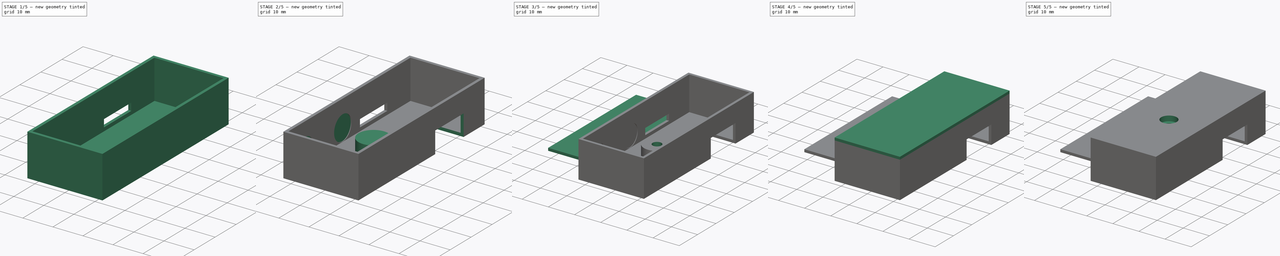
[diagram: build sequence overview — one tinted view per stage of 5, left to right]
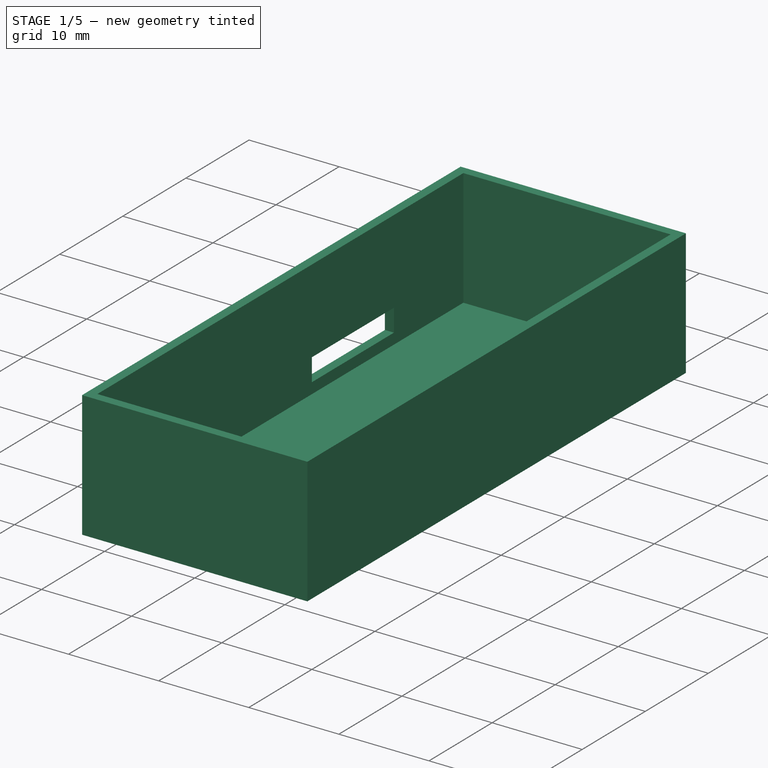
[diagram: stage 1 of 5 — iso view after this stage's code; geometry added in this stage tinted green]
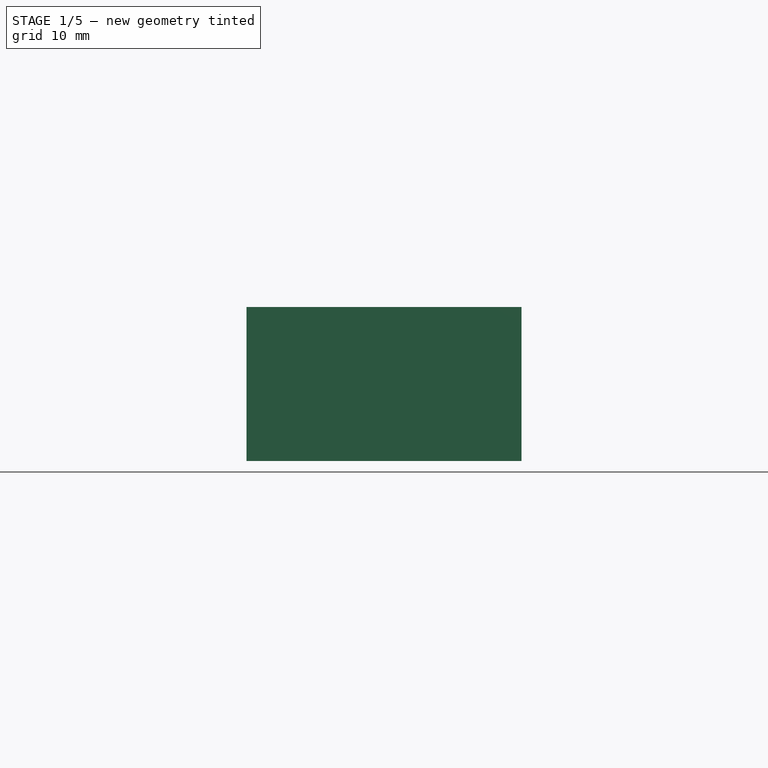
[diagram: stage 1 of 5 — front view after this stage's code; geometry added in this stage tinted green]
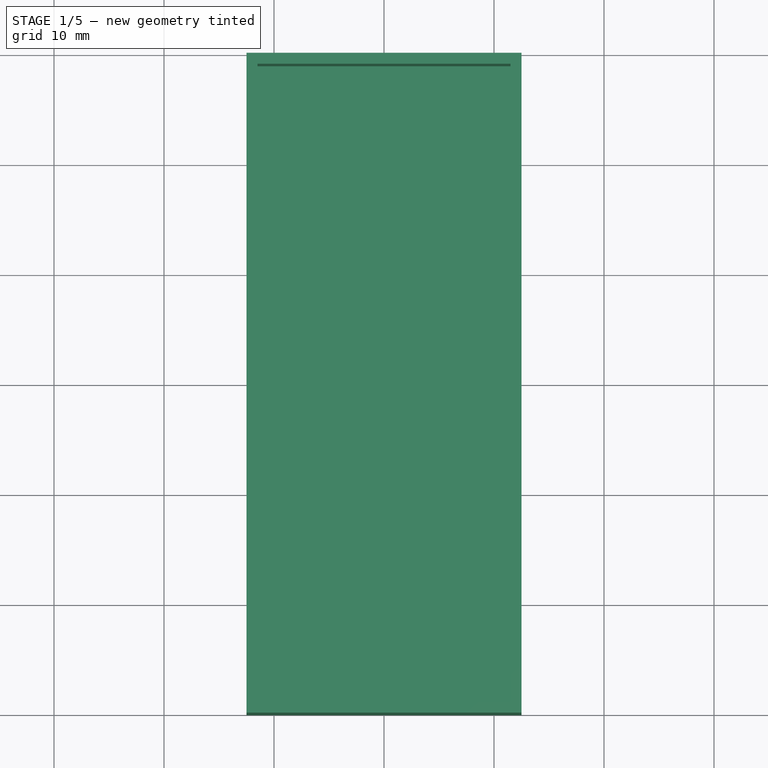
[diagram: stage 1 of 5 — top view after this stage's code; geometry added in this stage tinted green]
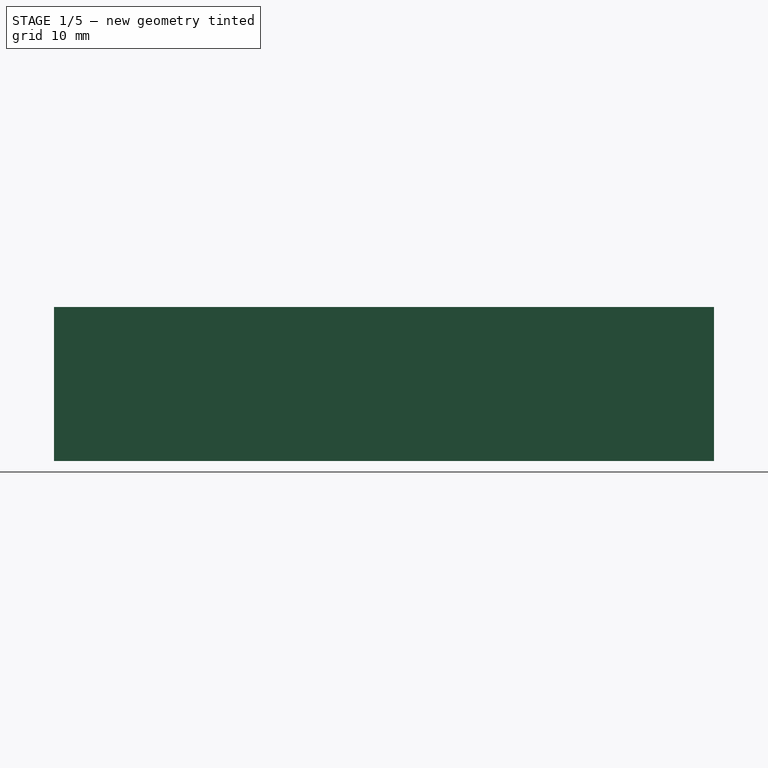
[diagram: stage 1 of 5 — right view after this stage's code; geometry added in this stage tinted green]
FCSTD DOCUMENT  (FreeCAD 0.18R16110 (Git))
Label: box
License: All rights reserved
LicenseURL: http://en.wikipedia.org/wiki/All_rights_reserved
objects: Sketcher::SketchObject×14, PartDesign::Pocket×8, PartDesign::Pad×6, PartDesign::Body×2, Spreadsheet::Sheet×1, PartDesign::Fillet×1
note: 45 computed .brp shape members not serialized (recipe doc carries the construction recipe); baked Part::Feature solids carry a one-line shape summary decoded from their .brp

FEATURE [Sketcher::SketchObject] Sketch
  MapMode = 5
  Support = -> [XY_Plane]
  sketch-geometry (4):
    g0: LineSegment StartX=-12.5 StartY=-30 StartZ=0 EndX=12.5 EndY=-30 EndZ=0
    g1: LineSegment StartX=12.5 StartY=-30 StartZ=0 EndX=12.5 EndY=30 EndZ=0
    g2: LineSegment StartX=12.5 StartY=30 StartZ=0 EndX=-12.5 EndY=30 EndZ=0
    g3: LineSegment StartX=-12.5 StartY=30 StartZ=0 EndX=-12.5 EndY=-30 EndZ=0
  constraints (11):
    c: Coincident(g0,g1)
    c: Coincident(g1,g2)
    c: Coincident(g2,g3)
    c: Coincident(g3,g0)
    c: Horizontal(g0)
    c: Horizontal(g2)
    c: Vertical(g1)
    c: Vertical(g3)
    c: Symmetric(g1,g0,g-1)
    c: Distance(g1) = 60
    c: Distance(g2) = 25
FEATURE [PartDesign::Pad] Pad  label="Base"
  Length = 14
  Length2 = 100
  Profile = -> Sketch
  Type = 0
  expr: Length = 12 + Spreadsheet.top_bottom * 2
FEATURE [Sketcher::SketchObject] Sketch001
  ExternalGeometry = -> [Pad]
  MapMode = 5
  Placement = pos=(0,0,14) rot=(0,0,1;0rad)
  Support = -> [Pad]
  expr: Constraints[11] = Spreadsheet.wall
  expr: Constraints[10] = Spreadsheet.wall
  expr: Constraints[9] = Spreadsheet.wall
  expr: Constraints[8] = Spreadsheet.wall
  sketch-geometry (4):
    g0: LineSegment StartX=-11.5 StartY=29 StartZ=0 EndX=11.5 EndY=29 EndZ=0
    g1: LineSegment StartX=11.5 StartY=29 StartZ=0 EndX=11.5 EndY=-29 EndZ=0
    g2: LineSegment StartX=11.5 StartY=-29 StartZ=0 EndX=-11.5 EndY=-29 EndZ=0
    g3: LineSegment StartX=-11.5 StartY=-29 StartZ=0 EndX=-11.5 EndY=29 EndZ=0
  constraints (12):
    c: Coincident(g0,g1)
    c: Coincident(g1,g2)
    c: Coincident(g2,g3)
    c: Coincident(g3,g0)
    c: Horizontal(g0)
    c: Horizontal(g2)
    c: Vertical(g1)
    c: Vertical(g3)
    c: DistanceX(g-3,g0) = 1
    c: DistanceY(g0,g-3) = 1
    c: DistanceY(g-4,g1) = 1
    c: DistanceX(g1,g-4) = 1
FEATURE [Spreadsheet::Sheet] Spreadsheet
  cells = A1=Wall thickness; B1(wall)=1; A2=Top/Bottom; B2(top_bottom)=1
FEATURE [PartDesign::Pocket] Pocket  label="Box"
  BaseFeature = -> Pad
  Length = 13
  Length2 = 100
  Profile = -> Sketch001
  Type = 0
  expr: Length = 12 + Spreadsheet.top_bottom
FEATURE [Sketcher::SketchObject] Sketch002
  ExternalGeometry = -> [Pocket]
  MapMode = 5
  Placement = pos=(-11.5,0,0) rot=(0.57735,0.57735,0.57735;2.0944rad)
  Support = -> [Pocket]
  expr: Constraints[10] = 12 - Spreadsheet.wall
  sketch-geometry (4):
    g0: LineSegment StartX=18 StartY=2.2 StartZ=0 EndX=5 EndY=2.2 EndZ=0
    g1: LineSegment StartX=5 StartY=2.2 StartZ=0 EndX=5 EndY=4.7 EndZ=0
    g2: LineSegment StartX=5 StartY=4.7 StartZ=0 EndX=18 EndY=4.7 EndZ=0
    g3: LineSegment StartX=18 StartY=4.7 StartZ=0 EndX=18 EndY=2.2 EndZ=0
  constraints (12):
    c: Coincident(g0,g1)
    c: Coincident(g1,g2)
    c: Coincident(g2,g3)
    c: Coincident(g3,g0)
    c: Horizontal(g0)
    c: Horizontal(g2)
    c: Vertical(g1)
    c: Vertical(g3)
    c: Distance(g1) = 2.5
    c: Distance(g2) = 13
    c: DistanceX(g2,g-4) = 11
    c: DistanceY(g-4,g0) = 1.2
FEATURE [PartDesign::Pocket] Pocket001  label="Pogos"
  BaseFeature = -> Pocket
  Length = 5
  Length2 = 100
  Profile = -> Sketch002
  Type = 0
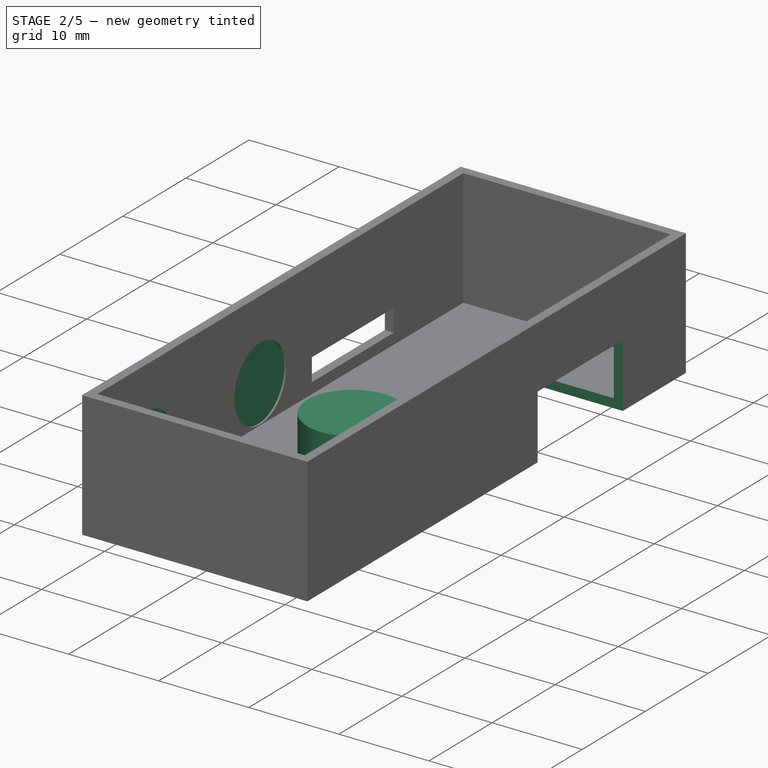
[diagram: stage 2 of 5 — iso view after this stage's code; geometry added in this stage tinted green]
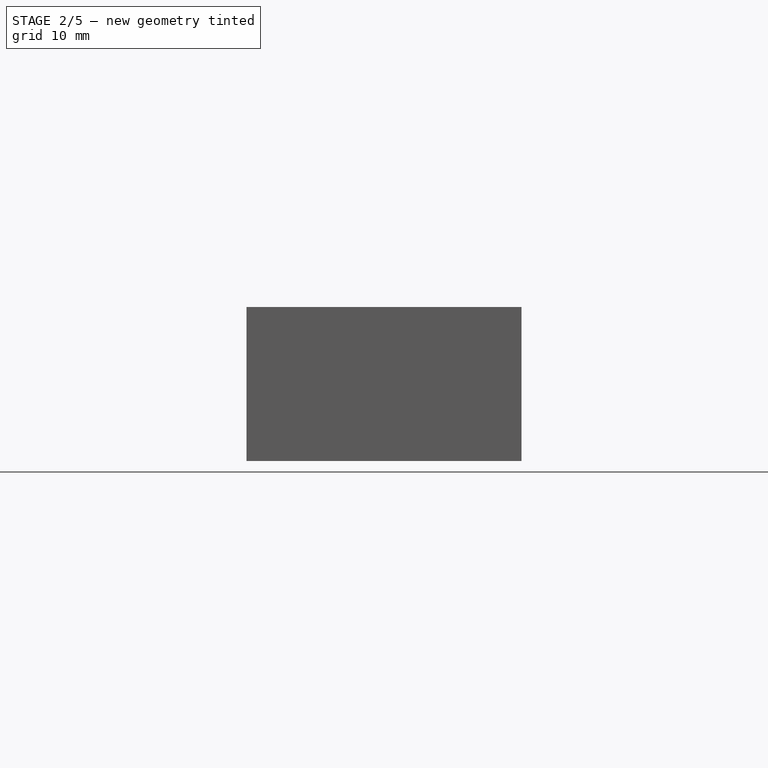
[diagram: stage 2 of 5 — front view after this stage's code; geometry added in this stage tinted green]
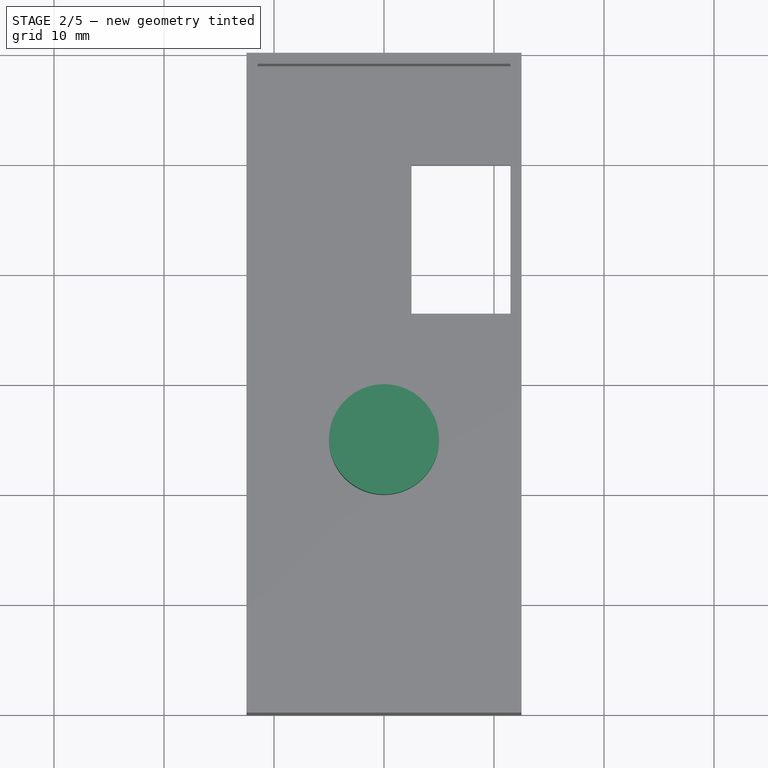
[diagram: stage 2 of 5 — top view after this stage's code; geometry added in this stage tinted green]
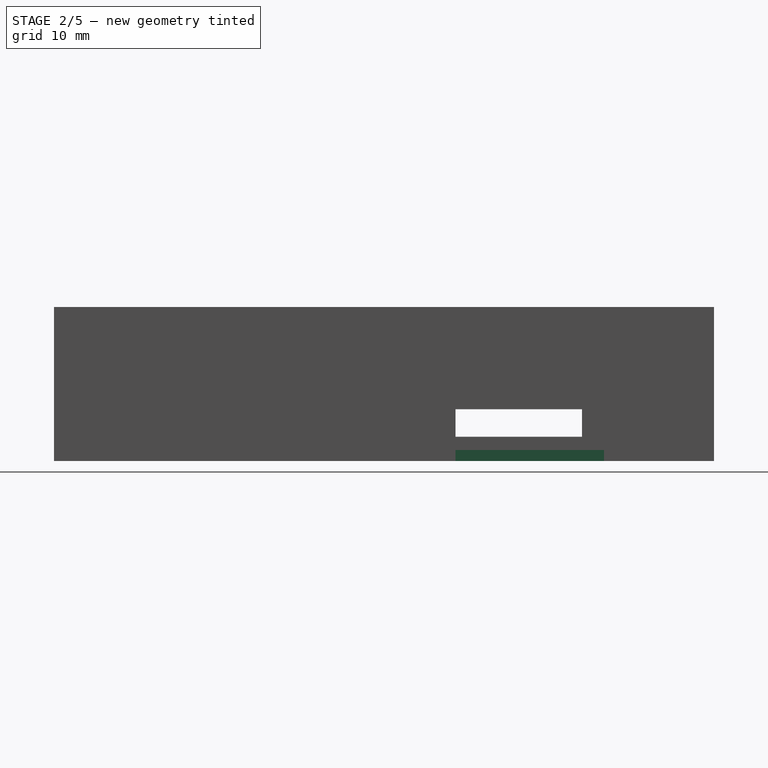
[diagram: stage 2 of 5 — right view after this stage's code; geometry added in this stage tinted green]
FEATURE [Sketcher::SketchObject] Sketch003
  ExternalGeometry = -> [Pocket001]
  MapMode = 5
  Placement = pos=(-11.5,0,0) rot=(0.57735,0.57735,0.57735;2.0944rad)
  Support = -> [Pocket001]
  sketch-geometry (2):
    g0: Circle CenterX=-3.2 CenterY=5.2 CenterZ=0 NormalX=0 NormalY=0 NormalZ=1 AngleXU=0 Radius=4.1
    g1: Circle CenterX=-21.2 CenterY=5.2 CenterZ=0 NormalX=0 NormalY=0 NormalZ=1 AngleXU=0 Radius=4.1
  constraints (6):
    c: Radius(g0) = 4.1
    c: DistanceX(g0,g-3) = 8.2
    c: DistanceY(g-3,g0) = 3
    c: Radius(g1) = 4.1
    c: DistanceX(g1,g0) = 18
    c: DistanceY(g1,g0) = 0
FEATURE [PartDesign::Pocket] Pocket002  label="Magnets"
  BaseFeature = -> Pocket001
  Length = 0.2
  Length2 = 100
  Profile = -> Sketch003
  Type = 0
  expr: Length = Spreadsheet.wall - 0.8
FEATURE [Sketcher::SketchObject] Sketch004
  ExternalGeometry = -> [Pocket002]
  MapMode = 5
  Placement = pos=(12.5,0,0) rot=(0.57735,0.57735,0.57735;2.0944rad)
  Support = -> [Pocket002]
  expr: Constraints[10] = 9 + Spreadsheet.wall
  sketch-geometry (4):
    g0: LineSegment StartX=20 StartY=7.1 StartZ=0 EndX=6.5 EndY=7.1 EndZ=0
    g1: LineSegment StartX=6.5 StartY=7.1 StartZ=0 EndX=6.5 EndY=0 EndZ=0
    g2: LineSegment StartX=6.5 StartY=0 StartZ=0 EndX=20 EndY=0 EndZ=0
    g3: LineSegment StartX=20 StartY=0 StartZ=0 EndX=20 EndY=7.1 EndZ=0
  constraints (12):
    c: Coincident(g0,g1)
    c: Coincident(g1,g2)
    c: Coincident(g2,g3)
    c: Coincident(g3,g0)
    c: Horizontal(g0)
    c: Horizontal(g2)
    c: Vertical(g1)
    c: Vertical(g3)
    c: Distance(g2) = 13.5
    c: Distance(g3) = 7.1
    c: DistanceX(g0,g-3) = 10
    c: PointOnObject(g1,g-3)
FEATURE [PartDesign::Pocket] Pocket003
  BaseFeature = -> Pocket002
  Length = 10
  Length2 = 100
  Profile = -> Sketch004
  Type = 0
FEATURE [Sketcher::SketchObject] Sketch005
  MapMode = 5
  Placement = pos=(0,0,1) rot=(0,0,1;0rad)
  Support = -> [Pocket003]
  sketch-geometry (1):
    g0: Circle CenterX=0 CenterY=-5 CenterZ=0 NormalX=0 NormalY=0 NormalZ=1 AngleXU=0 Radius=5
  constraints (3):
    c: PointOnObject(g0,g-2)
    c: Tangent(g0,g-1)
    c: Radius(g0) = 5
FEATURE [PartDesign::Pad] Pad001  label="Screw Post"
  BaseFeature = -> Pocket003
  Length = 5
  Length2 = 100
  Profile = -> Sketch005
  Type = 0
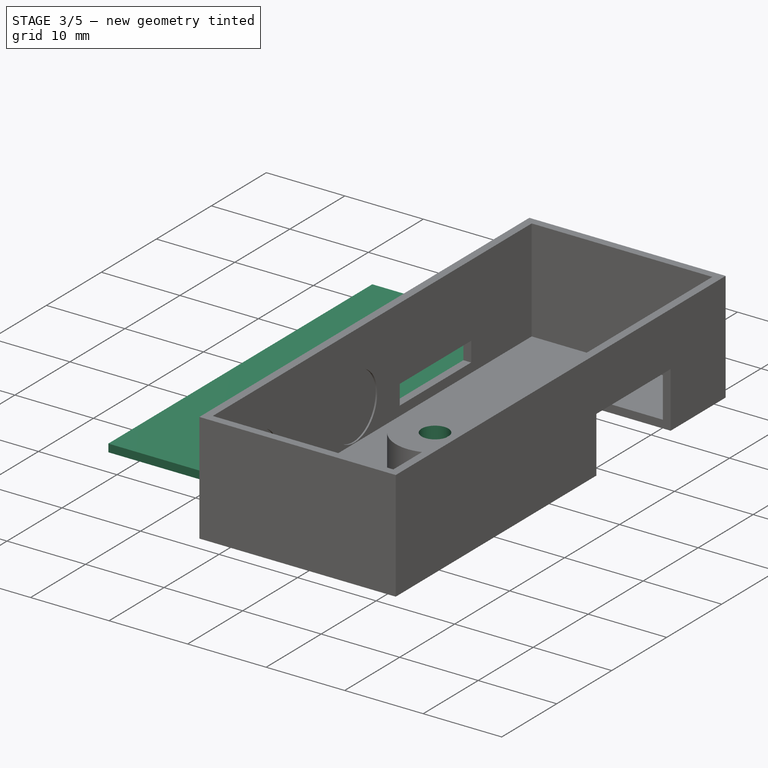
[diagram: stage 3 of 5 — iso view after this stage's code; geometry added in this stage tinted green]
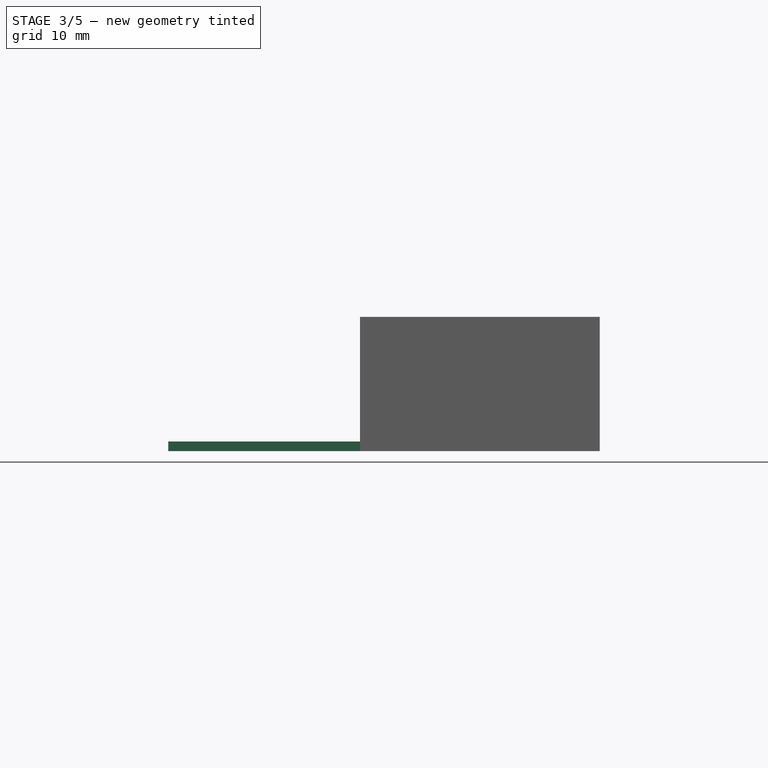
[diagram: stage 3 of 5 — front view after this stage's code; geometry added in this stage tinted green]
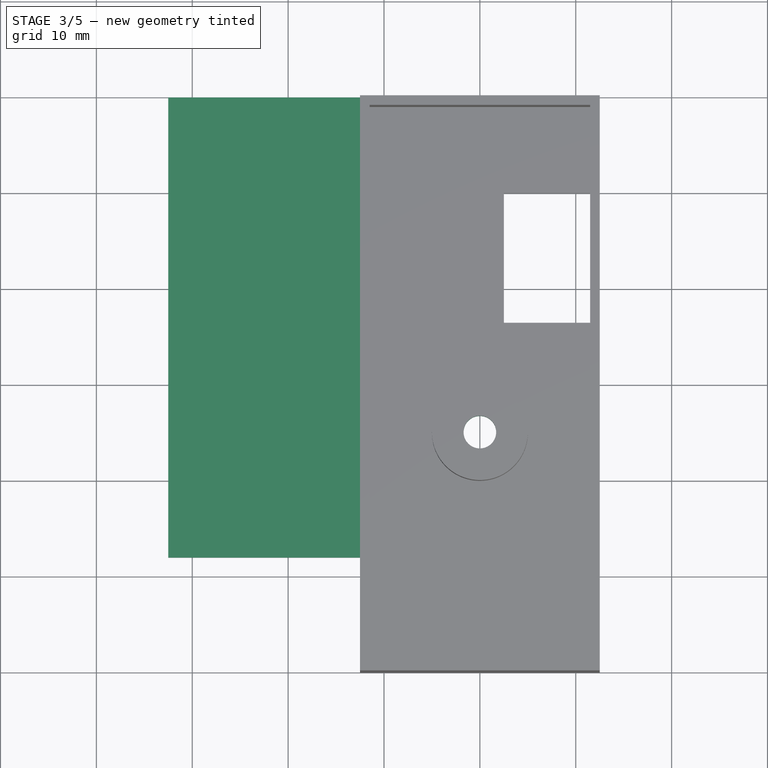
[diagram: stage 3 of 5 — top view after this stage's code; geometry added in this stage tinted green]
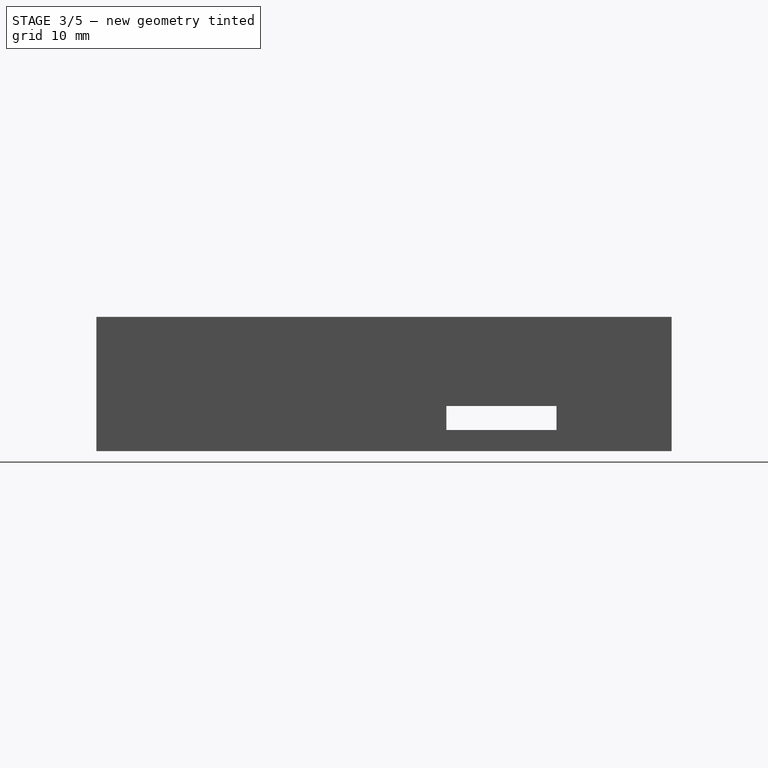
[diagram: stage 3 of 5 — right view after this stage's code; geometry added in this stage tinted green]
FEATURE [Sketcher::SketchObject] Sketch006
  ExternalGeometry = -> [Pad001]
  MapMode = 5
  Placement = pos=(0,0,6) rot=(0,0,1;0rad)
  Support = -> [Pad001]
  sketch-geometry (1):
    g0: Circle CenterX=0 CenterY=-5 CenterZ=0 NormalX=0 NormalY=0 NormalZ=1 AngleXU=0 Radius=1.7
  constraints (1):
    c: Radius(g0) = 1.7
FEATURE [PartDesign::Pocket] Pocket004  label="Screw Hole"
  BaseFeature = -> Pad001
  Length = 5
  Length2 = 100
  Profile = -> Sketch006
  Type = 1
FEATURE [Sketcher::SketchObject] Sketch007
  ExternalGeometry = -> [Pocket004]
  MapMode = 5
  Placement = pos=(0,0,0) rot=(1,0,0;3.14159rad)
  Support = -> [Pocket004]
  sketch-geometry (7):
    g0: LineSegment StartX=2.72798 StartY=6.575 StartZ=0 EndX=0 EndY=8.15 EndZ=0
    g1: LineSegment StartX=0 StartY=8.15 StartZ=0 EndX=-2.72798 EndY=6.575 EndZ=0
    g2: LineSegment StartX=-2.72798 StartY=6.575 StartZ=0 EndX=-2.72798 EndY=3.425 EndZ=0
    g3: LineSegment StartX=-2.72798 StartY=3.425 StartZ=0 EndX=-4e-16 EndY=1.85 EndZ=0
    g4: LineSegment StartX=-4e-16 StartY=1.85 StartZ=0 EndX=2.72798 EndY=3.425 EndZ=0
    g5: LineSegment StartX=2.72798 StartY=3.425 StartZ=0 EndX=2.72798 EndY=6.575 EndZ=0
    g6: Circle [constr] CenterX=0 CenterY=5 CenterZ=0 NormalX=0 NormalY=0 NormalZ=1 AngleXU=0 Radius=3.15
  constraints (16):
    c: Coincident(g0,g1)
    c: Coincident(g1,g2)
    c: Coincident(g2,g3)
    c: Coincident(g3,g4)
    c: Coincident(g4,g5)
    c: Coincident(g5,g0)
    c: Equal(g0, g1-g5) x5
    c: PointOnObject(g0,g6)
    c: PointOnObject(g1,g6)
    c: PointOnObject(g2,g6)
    c: PointOnObject(g3,g6)
    c: PointOnObject(g4,g6)
    c: PointOnObject(g5,g6)
    c: Coincident(g6,g-3)
    c: PointOnObject(g0,g-2)
    c: Radius(g6) = 3.15
FEATURE [PartDesign::Pocket] Pocket005  label="Hex Nut"
  BaseFeature = -> Pocket004
  Length = 4
  Length2 = 100
  Profile = -> Sketch007
  Type = 0
FEATURE [PartDesign::Body] Body001  label="Top"
  Group = -> [Sketch008,Pad002,Sketch009,Pad003,Sketch010,Pad004,Sketch011,Pocket006,Sketch012,Pocket007]
  Origin = -> Origin001
  Tip = -> Pocket007
FEATURE [Sketcher::SketchObject] Sketch013
  ExternalGeometry = -> [Pocket005]
  MapMode = 5
  Placement = pos=(0,30,0) rot=(0,0.707107,0.707107;3.14159rad)
  Support = -> [Pocket005]
  expr: Constraints[9] = Spreadsheet.top_bottom
  sketch-geometry (4):
    g0: LineSegment StartX=12.5 StartY=0 StartZ=0 EndX=32.5 EndY=0 EndZ=0
    g1: LineSegment StartX=32.5 StartY=0 StartZ=0 EndX=32.5 EndY=1 EndZ=0
    g2: LineSegment StartX=32.5 StartY=1 StartZ=0 EndX=12.5 EndY=1 EndZ=0
    g3: LineSegment StartX=12.5 StartY=1 StartZ=0 EndX=12.5 EndY=0 EndZ=0
  constraints (11):
    c: Coincident(g0,g1)
    c: Coincident(g1,g2)
    c: Coincident(g2,g3)
    c: Coincident(g3,g0)
    c: Horizontal(g0)
    c: Horizontal(g2)
    c: Vertical(g1)
    c: Vertical(g3)
    c: Coincident(g0,g-3)
    c: Distance(g1) = 1
    c: Distance(g2) = 20
FEATURE [PartDesign::Pad] Pad005  label="Backplate"
  BaseFeature = -> Pocket005
  Length = 48
  Length2 = 100
  Profile = -> Sketch013
  Reversed = true
  Type = 0
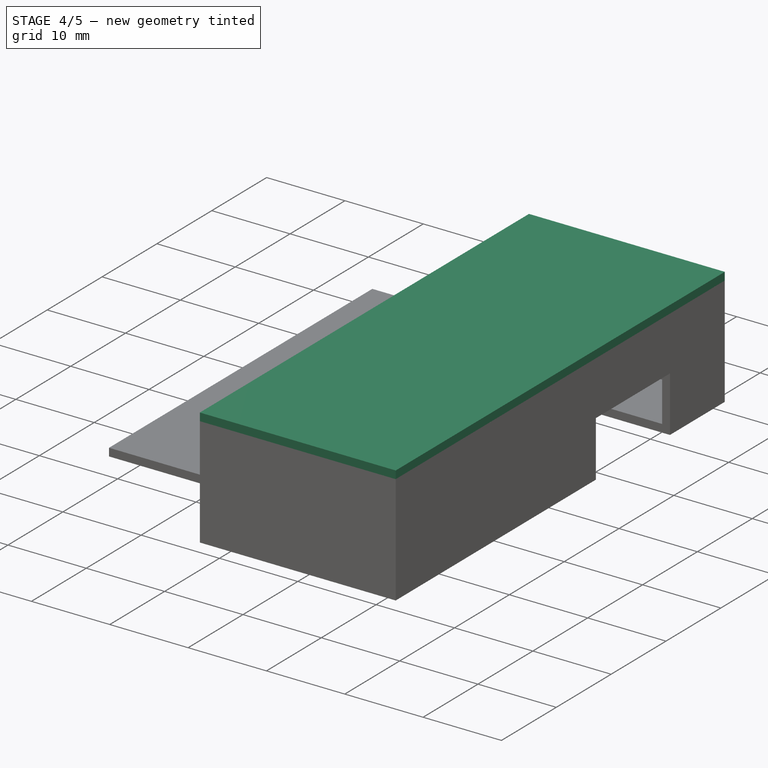
[diagram: stage 4 of 5 — iso view after this stage's code; geometry added in this stage tinted green]
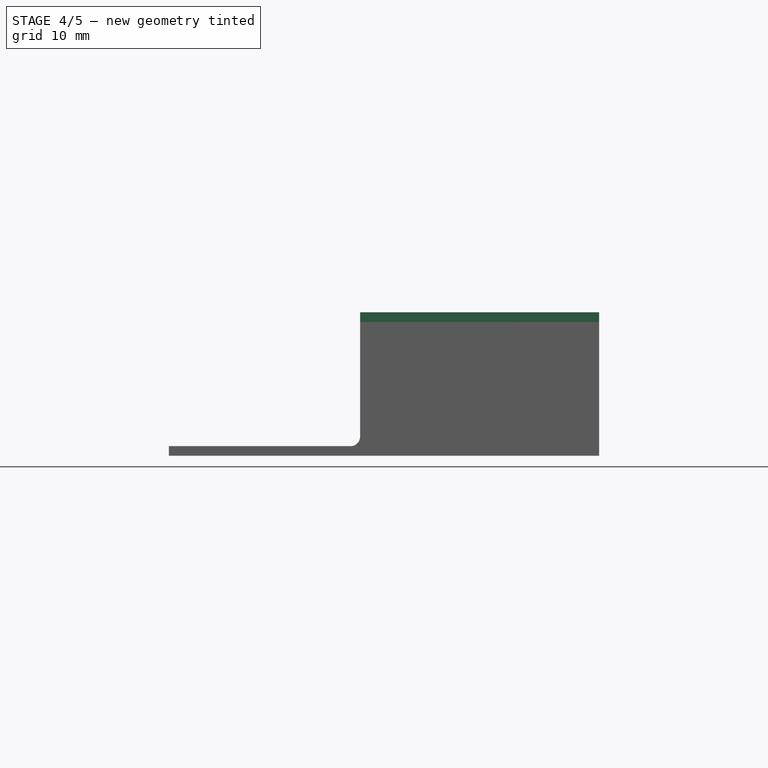
[diagram: stage 4 of 5 — front view after this stage's code; geometry added in this stage tinted green]
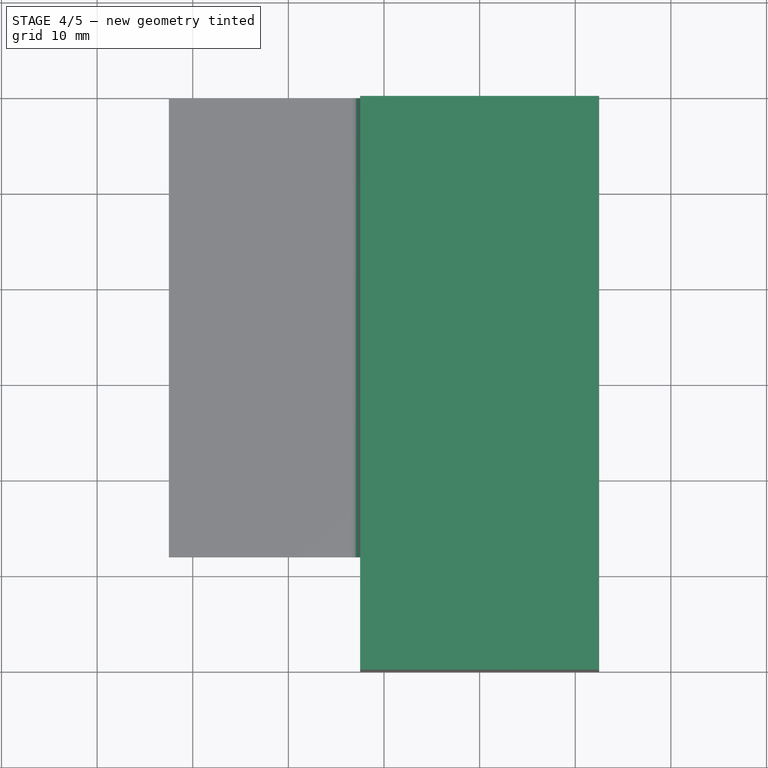
[diagram: stage 4 of 5 — top view after this stage's code; geometry added in this stage tinted green]
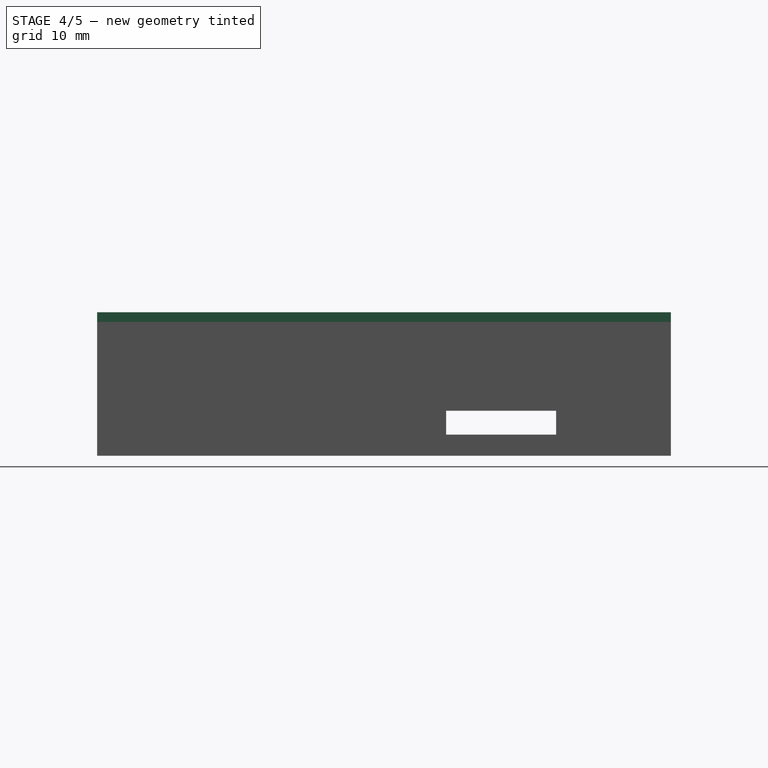
[diagram: stage 4 of 5 — right view after this stage's code; geometry added in this stage tinted green]
FEATURE [Sketcher::SketchObject] Sketch008
  AttachmentOffset = pos=(0,0,14) rot=(0,0,1;0rad)
  MapMode = 5
  Placement = pos=(0,0,14) rot=(0,0,1;0rad)
  Support = -> [XY_Plane001]
  expr: AttachmentOffset.Base.z = Spreadsheet.top_bottom * 2 + 12
  sketch-geometry (4):
    g0: LineSegment StartX=-12.5 StartY=30 StartZ=0 EndX=12.5 EndY=30 EndZ=0
    g1: LineSegment StartX=12.5 StartY=30 StartZ=0 EndX=12.5 EndY=-30 EndZ=0
    g2: LineSegment StartX=12.5 StartY=-30 StartZ=0 EndX=-12.5 EndY=-30 EndZ=0
    g3: LineSegment StartX=-12.5 StartY=-30 StartZ=0 EndX=-12.5 EndY=30 EndZ=0
  constraints (11):
    c: Coincident(g0,g1)
    c: Coincident(g1,g2)
    c: Coincident(g2,g3)
    c: Coincident(g3,g0)
    c: Horizontal(g0)
    c: Horizontal(g2)
    c: Vertical(g1)
    c: Vertical(g3)
    c: Symmetric(g1,g0,g-1)
    c: DistanceX(g0,g0) = 25
    c: Distance(g1) = 60
FEATURE [PartDesign::Pad] Pad002
  Length = 1
  Length2 = 100
  Profile = -> Sketch008
  Type = 0
  expr: Length = Spreadsheet.top_bottom
FEATURE [Sketcher::SketchObject] Sketch009
  ExternalGeometry = -> [Pad002]
  MapMode = 5
  Placement = pos=(0,0,14) rot=(1,0,0;3.14159rad)
  Support = -> [Pad002]
  expr: Constraints[10] = Spreadsheet.wall + 0.1
  expr: Constraints[9] = Spreadsheet.wall + 0.1
  expr: Constraints[8] = Spreadsheet.wall + 0.1
  sketch-geometry (8):
    g0: LineSegment StartX=-11.4 StartY=28.9 StartZ=0 EndX=11.4 EndY=28.9 EndZ=0
    g1: LineSegment StartX=11.4 StartY=28.9 StartZ=0 EndX=11.4 EndY=26.9 EndZ=0
    g2: LineSegment StartX=11.4 StartY=26.9 StartZ=0 EndX=-11.4 EndY=26.9 EndZ=0
    g3: LineSegment StartX=-11.4 StartY=26.9 StartZ=0 EndX=-11.4 EndY=28.9 EndZ=0
    g4: LineSegment StartX=9.4 StartY=24.9 StartZ=0 EndX=11.4 EndY=24.9 EndZ=0
    g5: LineSegment StartX=11.4 StartY=24.9 StartZ=0 EndX=11.4 EndY=-5 EndZ=0
    g6: LineSegment StartX=11.4 StartY=-5 StartZ=0 EndX=9.4 EndY=-5 EndZ=0
    g7: LineSegment StartX=9.4 StartY=-5 StartZ=0 EndX=9.4 EndY=24.9 EndZ=0
  constraints (24):
    c: Coincident(g0,g1)
    c: Coincident(g1,g2)
    c: Coincident(g2,g3)
    c: Coincident(g3,g0)
    c: Horizontal(g0)
    c: Horizontal(g2)
    c: Vertical(g1)
    c: Vertical(g3)
    c: DistanceY(g0,g-3) = 1.1
    c: DistanceX(g-3,g0) = 1.1
    c: DistanceX(g0,g-3) = 1.1
    c: DistanceY(g1,g1) = 2
    c: Coincident(g4,g5)
    c: Coincident(g5,g6)
    c: Coincident(g6,g7)
    c: Coincident(g7,g4)
    c: Horizontal(g4)
    c: Horizontal(g6)
    c: Vertical(g5)
    c: Vertical(g7)
    c: DistanceX(g4,g1) = 0
    c: Distance(g4) = 2
    c: DistanceY(g4,g1) = 2
    c: DistanceY(g5,g-1) = 5
FEATURE [PartDesign::Pad] Pad003
  BaseFeature = -> Pad002
  Length = 3
  Length2 = 100
  Profile = -> Sketch009
  Type = 0
FEATURE [PartDesign::Fillet] Fillet
  Base = -> Pad005 [Edge5]
  BaseFeature = -> Pad005
  Radius = 1
FEATURE [PartDesign::Body] Body  label="Bottom"
  Group = -> [Sketch,Pad,Sketch001,Pocket,Sketch002,Pocket001,Sketch003,Pocket002,Sketch004,Pocket003,Sketch005,Pad001,Sketch006,Pocket004,Sketch007,Pocket005,Sketch013,Pad005,Fillet]
  Origin = -> Origin
  Tip = -> Fillet
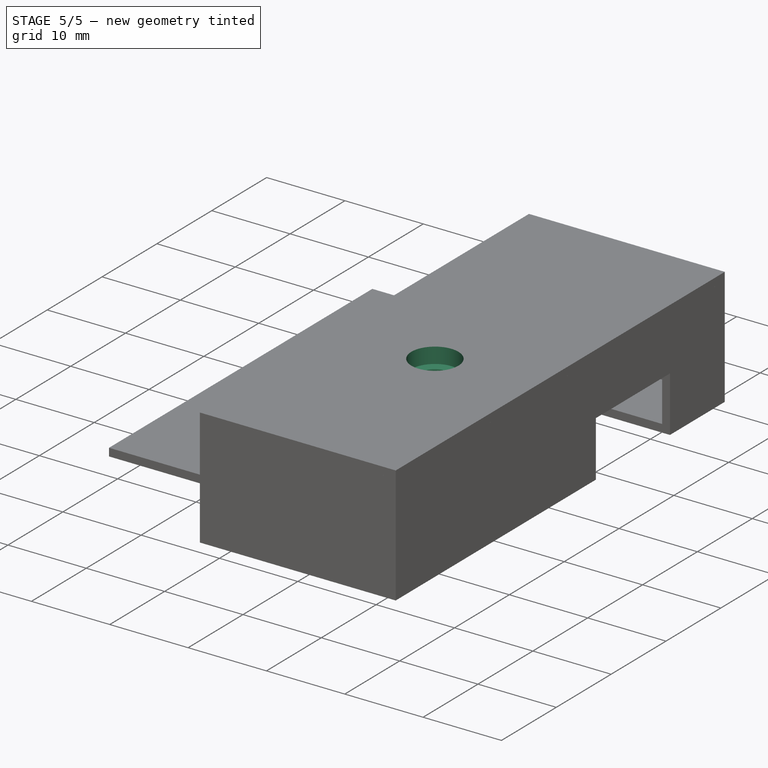
[diagram: stage 5 of 5 — iso view after this stage's code; geometry added in this stage tinted green]
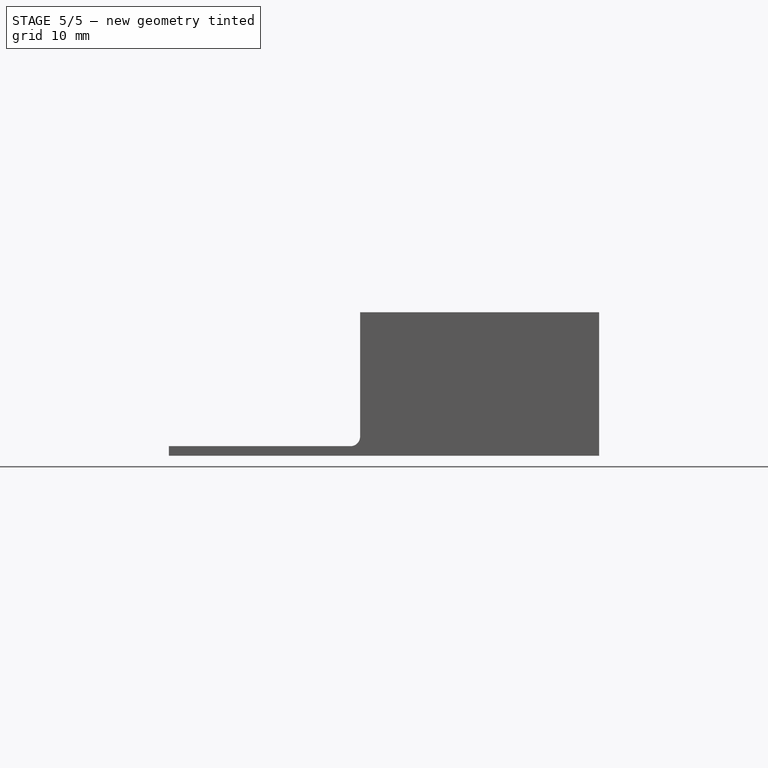
[diagram: stage 5 of 5 — front view after this stage's code; geometry added in this stage tinted green]
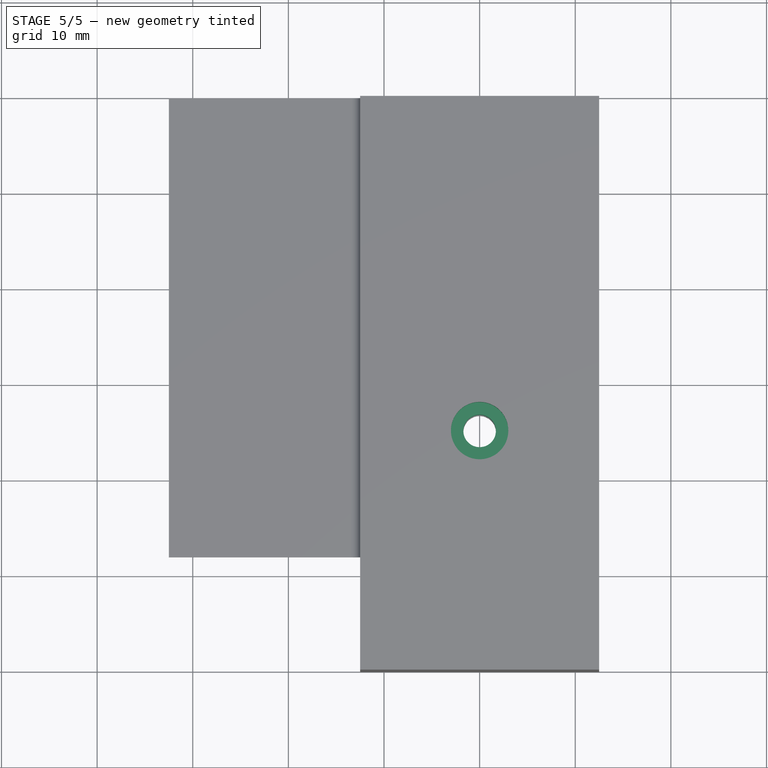
[diagram: stage 5 of 5 — top view after this stage's code; geometry added in this stage tinted green]
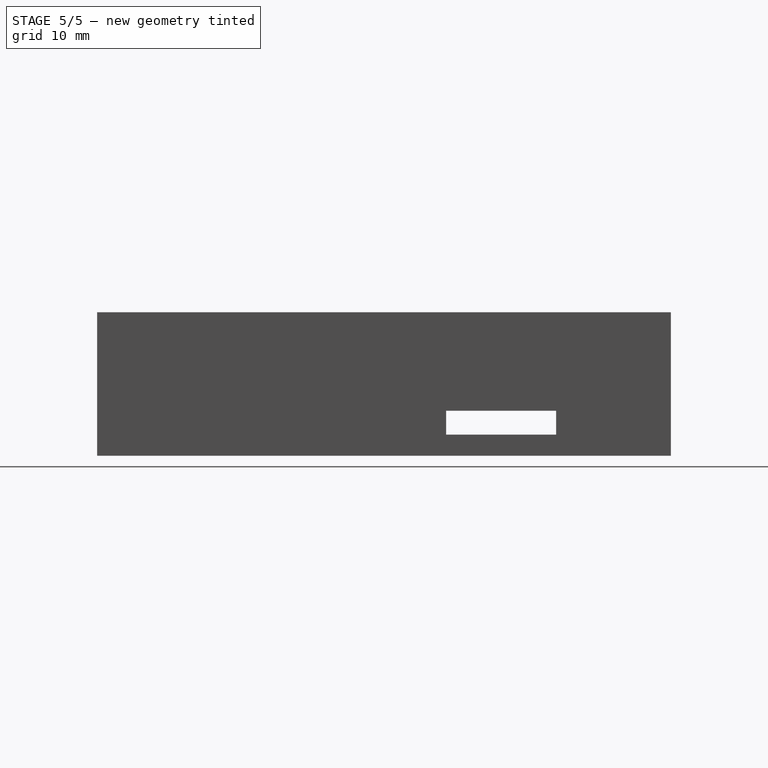
[diagram: stage 5 of 5 — right view after this stage's code; geometry added in this stage tinted green]
FEATURE [Sketcher::SketchObject] Sketch010
  MapMode = 5
  Placement = pos=(0,0,14) rot=(1,0,0;3.14159rad)
  Support = -> [Pad003]
  sketch-geometry (1):
    g0: Circle CenterX=0 CenterY=5 CenterZ=0 NormalX=0 NormalY=0 NormalZ=1 AngleXU=0 Radius=4
  constraints (3):
    c: PointOnObject(g0,g-2)
    c: Radius(g0) = 4
    c: DistanceY(g-1,g0) = 5
FEATURE [PartDesign::Pad] Pad004
  BaseFeature = -> Pad003
  Length = 4
  Length2 = 100
  Profile = -> Sketch010
  Type = 0
FEATURE [Sketcher::SketchObject] Sketch011
  MapMode = 5
  Placement = pos=(0,0,15) rot=(0,0,1;0rad)
  Support = -> [Pad004]
  sketch-geometry (1):
    g0: Circle CenterX=0 CenterY=-5 CenterZ=0 NormalX=0 NormalY=0 NormalZ=1 AngleXU=0 Radius=3
  constraints (3):
    c: PointOnObject(g0,g-2)
    c: DistanceY(g0,g-1) = 5
    c: Radius(g0) = 3
FEATURE [PartDesign::Pocket] Pocket006
  BaseFeature = -> Pad004
  Length = 2
  Length2 = 100
  Profile = -> Sketch011
  Type = 0
FEATURE [Sketcher::SketchObject] Sketch012
  ExternalGeometry = -> [Pocket006]
  MapMode = 5
  Placement = pos=(0,0,13) rot=(0,0,1;0rad)
  Support = -> [Pocket006]
  sketch-geometry (1):
    g0: Circle CenterX=0 CenterY=-5 CenterZ=0 NormalX=0 NormalY=0 NormalZ=1 AngleXU=0 Radius=1.7
  constraints (2):
    c: Coincident(g0,g-3)
    c: Radius(g0) = 1.7
FEATURE [PartDesign::Pocket] Pocket007
  BaseFeature = -> Pocket006
  Length = 5
  Length2 = 100
  Profile = -> Sketch012
  Type = 0
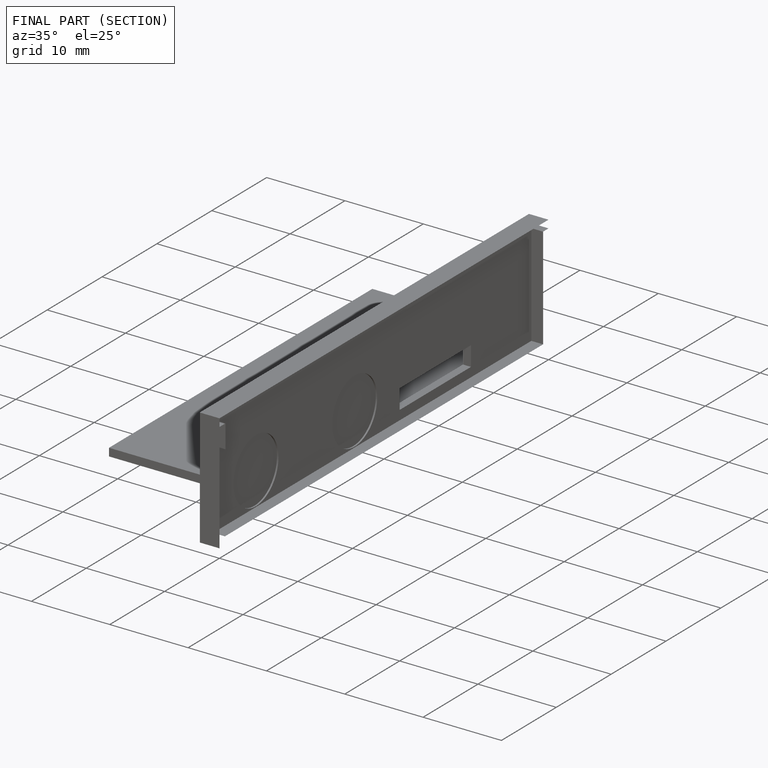
[diagram: finished part — half-section view (interior)]
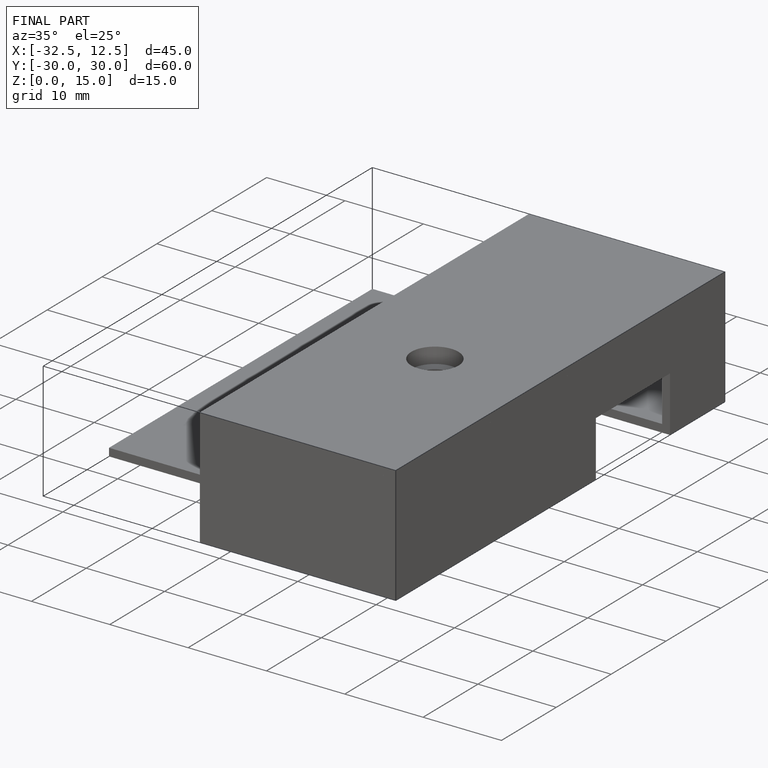
[diagram: finished part — iso view with bounding-box wireframe]
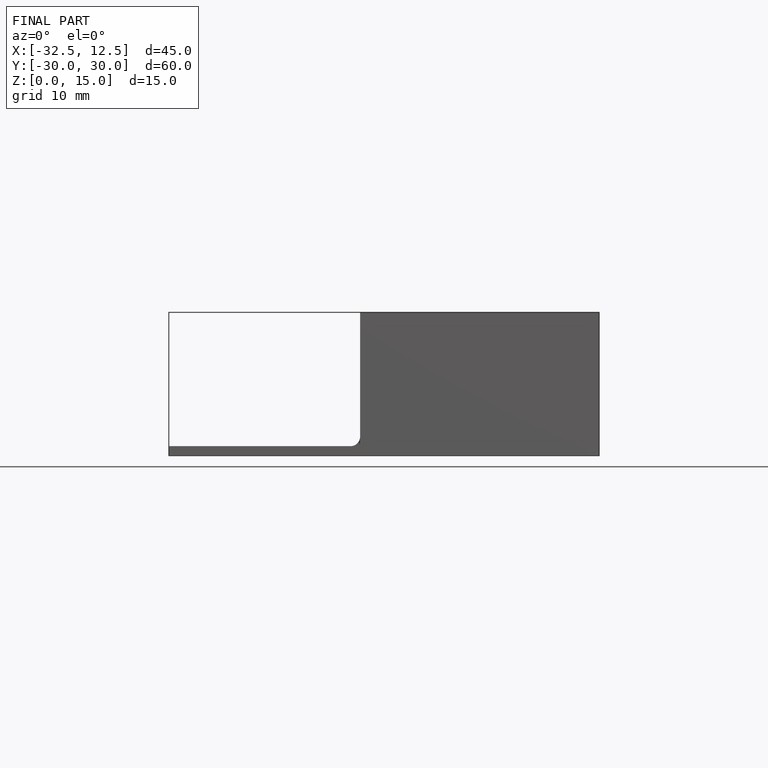
[diagram: finished part — front view with bounding-box wireframe]
